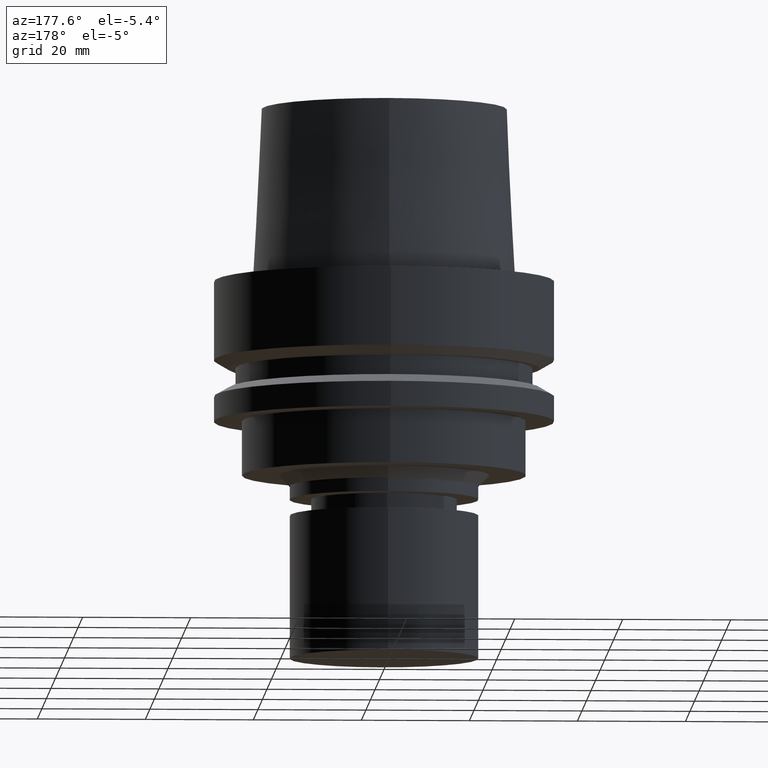
[diagram: clean part render]
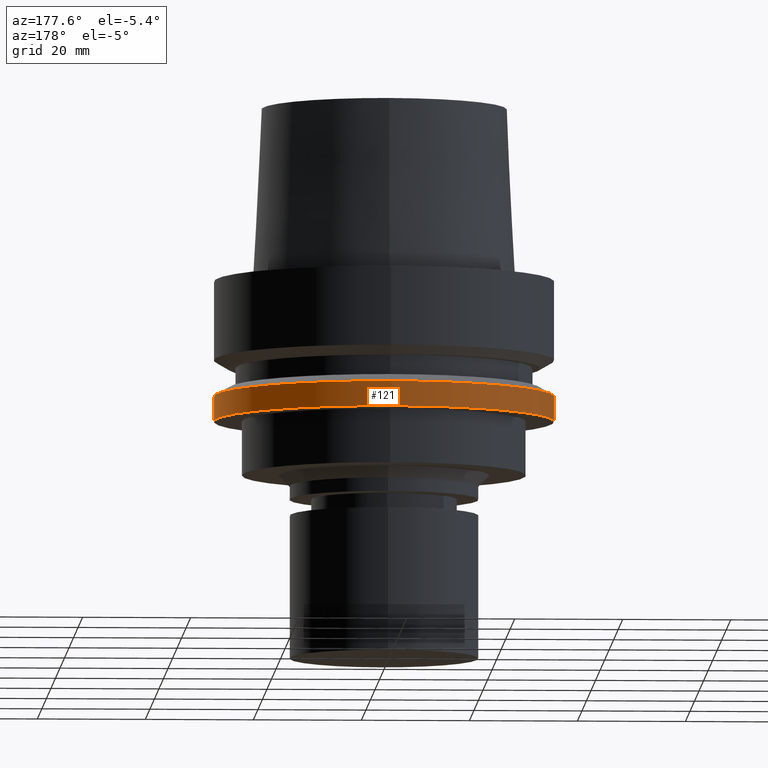
[diagram: same view with one face highlighted and labeled with its STEP entity id]
A machine part, auxiliary view. The second image highlights one B-rep face of the part: STEP entity #121.
In plain terms, the highlighted cylindrical surface (bore or boss wall) has radius 31.5 mm, axis along (-0, -0, 1).
Its self-contained STEP definition (entity closure, byte-faithful):
#95=EDGE_CURVE('Unnamed[1]',#242,#242,#243,.T.);
#121=ADVANCED_FACE('Unnamed[1]',(#281,#282),#283,.T.);
#189=EDGE_CURVE('Unnamed[1]',#387,#387,#388,.T.);
#242=VERTEX_POINT('',#447);
#243=CIRCLE('',#448,31.5);
#281=FACE_BOUND('',#496,.T.);
#282=FACE_BOUND('',#497,.T.);
#283=CYLINDRICAL_SURFACE('',#498,31.4999999999999);
#387=VERTEX_POINT('',#628);
#388=CIRCLE('',#629,31.4999999999998);
#447=CARTESIAN_POINT('',(1.30899429078397E-015,31.5,-21.3774990747592));
#448=AXIS2_PLACEMENT_3D('',#674,#675,#676);
#496=EDGE_LOOP('',(#718));
#497=EDGE_LOOP('',(#719));
#498=AXIS2_PLACEMENT_3D('',#720,#721,#722);
#628=CARTESIAN_POINT('',(1.59204083889155E-015,31.4999999999998,-25.9999999999999));
#629=AXIS2_PLACEMENT_3D('',#836,#837,#838);
#674=CARTESIAN_POINT('',(1.30899429078397E-015,2.61798858156794E-015,-21.3774990747592));
#675=DIRECTION('',(-6.12323399573677E-017,-1.22464679914735E-016,1.0));
#676=DIRECTION('',(-1.23259516440783E-032,1.0,1.22464679914735E-016));
#718=ORIENTED_EDGE('',*,*,#95,.F.);
#719=ORIENTED_EDGE('',*,*,#189,.T.);
#720=CARTESIAN_POINT('',(1.45051756483776E-015,2.90103512967552E-015,-23.6887495373796));
#721=DIRECTION('',(-6.12323399573677E-017,-1.22464679914735E-016,1.0));
#722=DIRECTION('',(-1.23259516440783E-032,1.0,1.22464679914735E-016));
#836=CARTESIAN_POINT('',(1.59204083889155E-015,3.1840816777831E-015,-25.9999999999999));
#837=DIRECTION('',(-6.12323399573676E-017,-1.22464679914735E-016,1.0));
#838=DIRECTION('',(-1.23259516440783E-032,1.0,1.22464679914735E-016));